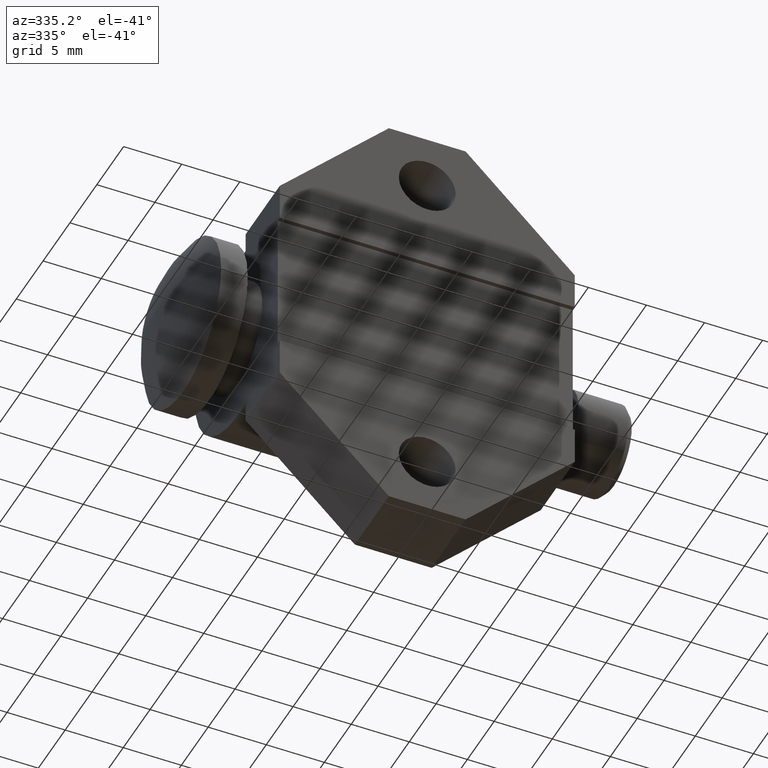
[diagram: clean part render]
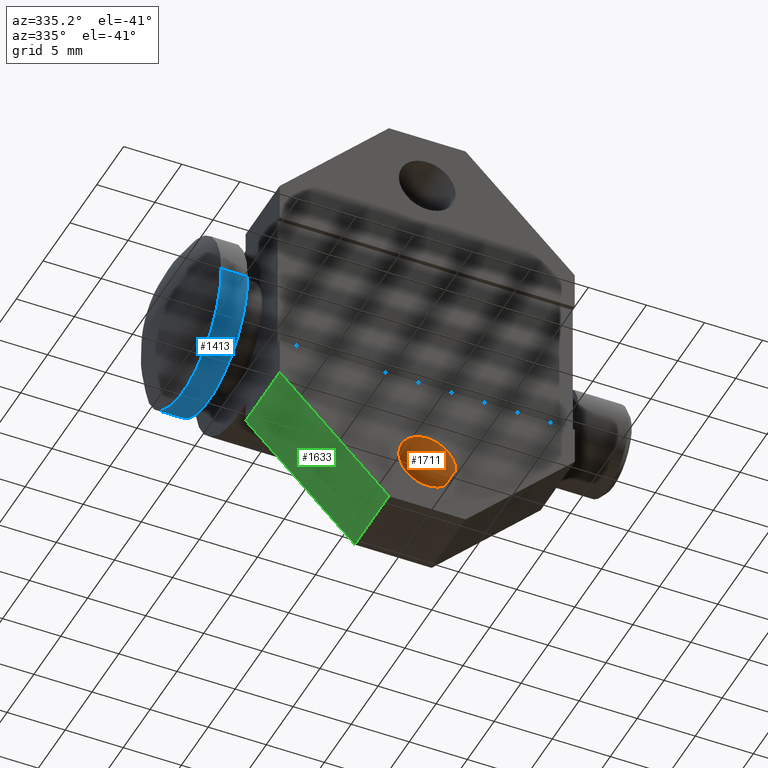
[diagram: same view with three faces highlighted in distinct colors, each labeled with its STEP entity id]
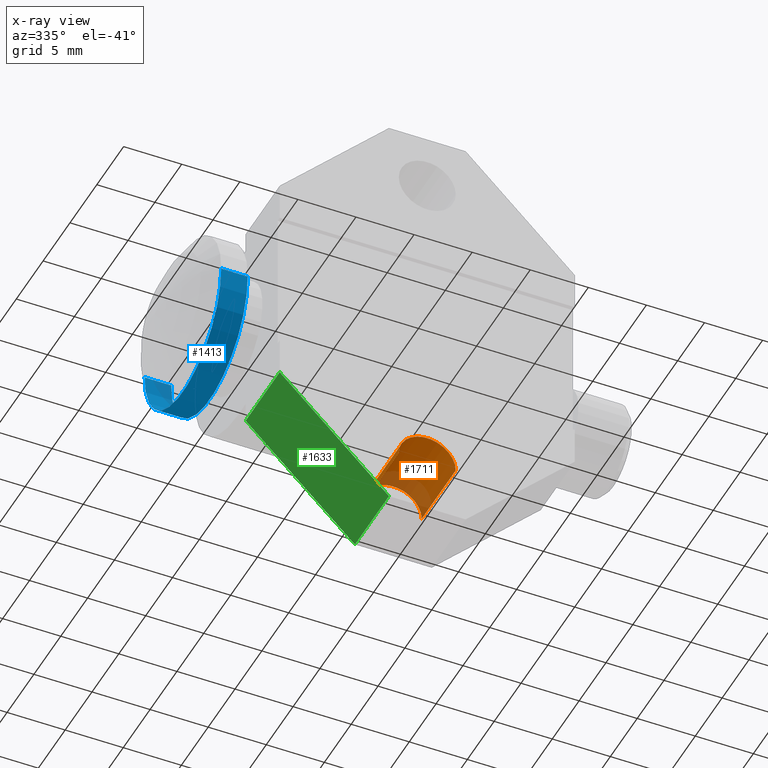
[diagram: x-ray of the same camera — body ghosted, the three highlighted faces saturated]
A machine part, auxiliary view with three faces highlighted in distinct colors.
The next image is the same camera in x-ray (body ghosted, the three faces saturated) — at least one of them is partly hidden behind the body in this view.
Their STEP definitions:

[orange] entity #1711 — the highlighted cylindrical surface (edge-blend (fillet) strip) has radius 2.4511 mm, axis along (0, -1, 0).
#642=CARTESIAN_POINT('',(0.E0,0.E0,-5.625E-1));
#643=DIRECTION('',(0.E0,-1.E0,0.E0));
#644=DIRECTION('',(1.E0,0.E0,0.E0));
#645=AXIS2_PLACEMENT_3D('',#642,#643,#644);
#758=CARTESIAN_POINT('',(0.E0,2.5E-1,-5.625E-1));
#759=DIRECTION('',(0.E0,-1.E0,0.E0));
#760=DIRECTION('',(1.E0,0.E0,0.E0));
#761=AXIS2_PLACEMENT_3D('',#758,#759,#760);
#886=DIRECTION('',(0.E0,-1.E0,0.E0));
#887=VECTOR('',#886,2.5E-1);
#888=CARTESIAN_POINT('',(9.65E-2,2.5E-1,-5.625E-1));
#889=LINE('',#888,#887);
#893=DIRECTION('',(0.E0,-1.E0,0.E0));
#894=VECTOR('',#893,2.5E-1);
#895=CARTESIAN_POINT('',(-9.65E-2,2.5E-1,-5.625E-1));
#896=LINE('',#895,#894);
#1026=CARTESIAN_POINT('',(9.65E-2,0.E0,-5.625E-1));
#1027=CARTESIAN_POINT('',(-9.65E-2,0.E0,-5.625E-1));
#1028=VERTEX_POINT('',#1026);
#1029=VERTEX_POINT('',#1027);
#1030=CARTESIAN_POINT('',(9.65E-2,2.5E-1,-5.625E-1));
#1031=CARTESIAN_POINT('',(-9.65E-2,2.5E-1,-5.625E-1));
#1032=VERTEX_POINT('',#1030);
#1033=VERTEX_POINT('',#1031);
#1698=CARTESIAN_POINT('',(0.E0,2.5E-1,-5.625E-1));
#1699=DIRECTION('',(0.E0,-1.E0,0.E0));
#1700=DIRECTION('',(1.E0,0.E0,0.E0));
#1701=AXIS2_PLACEMENT_3D('',#1698,#1699,#1700);
#1702=CYLINDRICAL_SURFACE('',#1701,9.65E-2);
#1703=ORIENTED_EDGE('',*,*,#1479,.F.);
#1705=ORIENTED_EDGE('',*,*,#1704,.F.);
#1706=ORIENTED_EDGE('',*,*,#1553,.T.);
#1708=ORIENTED_EDGE('',*,*,#1707,.T.);
#1709=EDGE_LOOP('',(#1703,#1705,#1706,#1708));
#1710=FACE_OUTER_BOUND('',#1709,.F.);
#1711=ADVANCED_FACE('',(#1710),#1702,.F.);
#646=CIRCLE('',#645,9.65E-2);
#762=CIRCLE('',#761,9.65E-2);
#1479=EDGE_CURVE('',#1028,#1029,#646,.T.);
#1553=EDGE_CURVE('',#1032,#1033,#762,.T.);
#1704=EDGE_CURVE('',#1032,#1028,#889,.T.);
#1707=EDGE_CURVE('',#1033,#1029,#896,.T.);

[blue] entity #1413 — the highlighted cylindrical surface (partial cylindrical patch) has radius 7.1374 mm, axis along (1, 0, 0).
#501=DIRECTION('',(-1.E0,0.E0,0.E0));
#502=VECTOR('',#501,9.E-2);
#503=CARTESIAN_POINT('',(-5.94E-1,5.93E-1,0.E0));
#504=LINE('',#503,#502);
#508=DIRECTION('',(-1.E0,0.E0,0.E0));
#509=VECTOR('',#508,9.E-2);
#510=CARTESIAN_POINT('',(-5.94E-1,3.1E-2,0.E0));
#511=LINE('',#510,#509);
#515=CARTESIAN_POINT('',(-5.94E-1,3.12E-1,0.E0));
#516=DIRECTION('',(-1.E0,0.E0,0.E0));
#517=DIRECTION('',(0.E0,1.E0,0.E0));
#518=AXIS2_PLACEMENT_3D('',#515,#516,#517);
#539=CARTESIAN_POINT('',(-6.84E-1,3.12E-1,0.E0));
#540=DIRECTION('',(-1.E0,0.E0,0.E0));
#541=DIRECTION('',(0.E0,1.E0,0.E0));
#542=AXIS2_PLACEMENT_3D('',#539,#540,#541);
#996=CARTESIAN_POINT('',(-5.94E-1,5.93E-1,0.E0));
#997=CARTESIAN_POINT('',(-6.84E-1,5.93E-1,0.E0));
#998=VERTEX_POINT('',#996);
#999=VERTEX_POINT('',#997);
#1002=CARTESIAN_POINT('',(-5.94E-1,3.1E-2,0.E0));
#1003=CARTESIAN_POINT('',(-6.84E-1,3.1E-2,0.E0));
#1004=VERTEX_POINT('',#1002);
#1005=VERTEX_POINT('',#1003);
#1401=CARTESIAN_POINT('',(-7.9035E-1,3.12E-1,0.E0));
#1402=DIRECTION('',(1.E0,0.E0,0.E0));
#1403=DIRECTION('',(0.E0,-1.E0,0.E0));
#1404=AXIS2_PLACEMENT_3D('',#1401,#1402,#1403);
#1405=CYLINDRICAL_SURFACE('',#1404,2.81E-1);
#1406=ORIENTED_EDGE('',*,*,#1391,.T.);
#1408=ORIENTED_EDGE('',*,*,#1407,.T.);
#1409=ORIENTED_EDGE('',*,*,#1394,.F.);
#1410=ORIENTED_EDGE('',*,*,#1376,.F.);
#1411=EDGE_LOOP('',(#1406,#1408,#1409,#1410));
#1412=FACE_OUTER_BOUND('',#1411,.F.);
#1413=ADVANCED_FACE('',(#1412),#1405,.T.);
#519=CIRCLE('',#518,2.81E-1);
#543=CIRCLE('',#542,2.81E-1);
#1376=EDGE_CURVE('',#998,#1004,#519,.T.);
#1391=EDGE_CURVE('',#998,#999,#504,.T.);
#1394=EDGE_CURVE('',#1004,#1005,#511,.T.);
#1407=EDGE_CURVE('',#999,#1005,#543,.T.);

[green] entity #1633 — the highlighted planar face has unit normal (-0.7071, 0, -0.7071).
#788=DIRECTION('',(0.E0,1.E0,0.E0));
#789=VECTOR('',#788,2.5E-1);
#790=CARTESIAN_POINT('',(-5.E-1,0.E0,-3.8E-1));
#791=LINE('',#790,#789);
#795=DIRECTION('',(7.071067811865E-1,0.E0,-7.071067811865E-1));
#796=VECTOR('',#795,5.232590180780E-1);
#797=CARTESIAN_POINT('',(-5.E-1,0.E0,-3.8E-1));
#798=LINE('',#797,#796);
#802=DIRECTION('',(0.E0,1.E0,0.E0));
#803=VECTOR('',#802,2.5E-1);
#804=CARTESIAN_POINT('',(-1.3E-1,0.E0,-7.5E-1));
#805=LINE('',#804,#803);
#809=DIRECTION('',(7.071067811865E-1,0.E0,-7.071067811865E-1));
#810=VECTOR('',#809,5.232590180780E-1);
#811=CARTESIAN_POINT('',(-5.E-1,2.5E-1,-3.8E-1));
#812=LINE('',#811,#810);
#988=CARTESIAN_POINT('',(-5.E-1,0.E0,-3.8E-1));
#989=CARTESIAN_POINT('',(-5.E-1,2.5E-1,-3.8E-1));
#990=VERTEX_POINT('',#988);
#991=VERTEX_POINT('',#989);
#992=CARTESIAN_POINT('',(-1.3E-1,0.E0,-7.5E-1));
#993=CARTESIAN_POINT('',(-1.3E-1,2.5E-1,-7.5E-1));
#994=VERTEX_POINT('',#992);
#995=VERTEX_POINT('',#993);
#1622=CARTESIAN_POINT('',(-5.E-1,0.E0,-3.8E-1));
#1623=DIRECTION('',(-7.071067811865E-1,0.E0,-7.071067811865E-1));
#1624=DIRECTION('',(0.E0,1.E0,0.E0));
#1625=AXIS2_PLACEMENT_3D('',#1622,#1623,#1624);
#1626=PLANE('',#1625);
#1627=ORIENTED_EDGE('',*,*,#1327,.F.);
#1628=ORIENTED_EDGE('',*,*,#1474,.T.);
#1629=ORIENTED_EDGE('',*,*,#1533,.T.);
#1630=ORIENTED_EDGE('',*,*,#1546,.F.);
#1631=EDGE_LOOP('',(#1627,#1628,#1629,#1630));
#1632=FACE_OUTER_BOUND('',#1631,.F.);
#1633=ADVANCED_FACE('',(#1632),#1626,.T.);
#1327=EDGE_CURVE('',#990,#991,#791,.T.);
#1474=EDGE_CURVE('',#990,#994,#798,.T.);
#1533=EDGE_CURVE('',#994,#995,#805,.T.);
#1546=EDGE_CURVE('',#991,#995,#812,.T.);